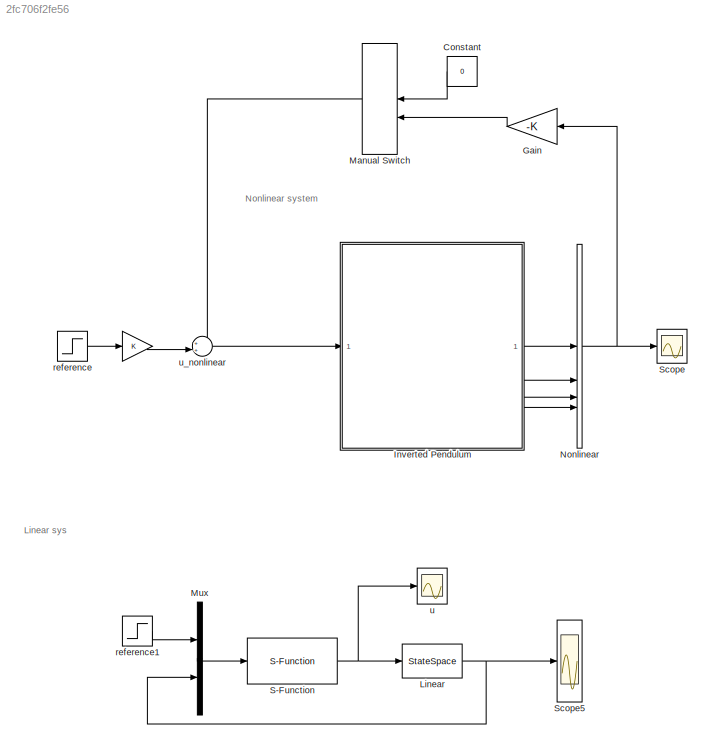
MODEL slx_2fc706f2fe56
KIND model
CONFIG AbsTol = auto
CONFIG EnableMultiTasking = off
CONFIG FixedStep = auto
CONFIG MaxStep = 1e-4
CONFIG MinStep = auto
CONFIG RelTol = 1e-3
CONFIG SampleTimeConstraint = Unconstrained
CONFIG SolverName = VariableStepAuto
CONFIG StartTime = 0.0
CONFIG StopTime = 10
BLOCK [Gain]  
  Commented = on
BLOCK [Constant] Constant
  Commented = on
  NameLocation = top
  Value = 0
BLOCK [Gain] Gain
  Commented = on
  Gain = -K
  Multiplication = Matrix(K*u) (u vector)
  NameLocation = top
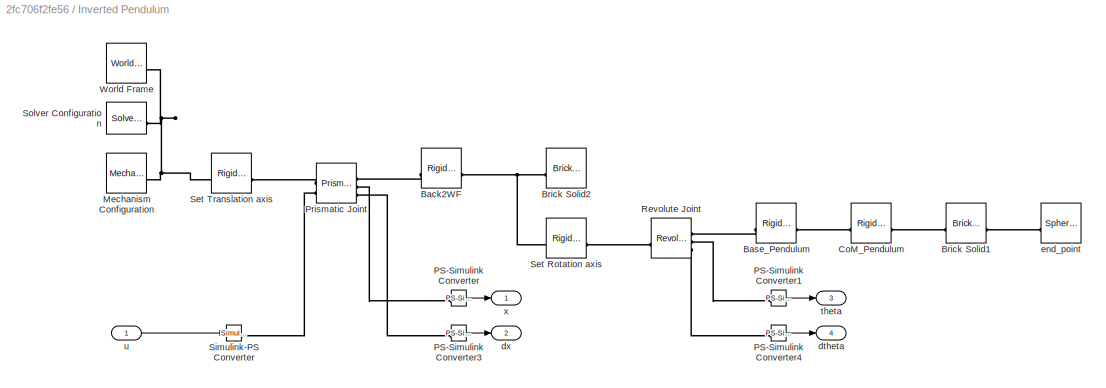
BLOCK [SubSystem] Inverted Pendulum
  Commented = on
BLOCK [Reference] Inverted Pendulum/Back2WF  REF=sm_lib/Frames and
Transforms/Rigid
Transform
  SourceBlock = sm_lib/Frames and\nTransforms/Rigid\nTransform
  SourceType = Rigid\nTransform
BLOCK [Reference] Inverted Pendulum/Base_Pendulum  REF=sm_lib/Frames and
Transforms/Rigid
Transform
  SourceBlock = sm_lib/Frames and\nTransforms/Rigid\nTransform
  SourceType = Rigid\nTransform
BLOCK [Reference] Inverted Pendulum/Brick Solid1  REF=sm_lib/Body Elements/Brick Solid
  SourceBlock = sm_lib/Body Elements/Brick Solid
  SourceType = Brick Solid
BLOCK [Reference] Inverted Pendulum/Brick Solid2  REF=sm_lib/Body Elements/Brick Solid
  NameLocation = top
  SourceBlock = sm_lib/Body Elements/Brick Solid
  SourceType = Brick Solid
BLOCK [Reference] Inverted Pendulum/CoM_Pendulum  REF=sm_lib/Frames and
Transforms/Rigid
Transform
  SourceBlock = sm_lib/Frames and\nTransforms/Rigid\nTransform
  SourceType = Rigid\nTransform
BLOCK [Reference] Inverted Pendulum/Mechanism Configuration  REF=sm_lib/Utilities/Mechanism
Configuration
  SourceBlock = sm_lib/Utilities/Mechanism\nConfiguration
  SourceType = Mechanism\nConfiguration
BLOCK [Reference] Inverted Pendulum/PS-Simulink Converter  REF=nesl_utility/PS-Simulink
Converter
  NameLocation = top
  SourceBlock = nesl_utility/PS-Simulink\nConverter
  SourceType = PS-Simulink\nConverter
BLOCK [Reference] Inverted Pendulum/PS-Simulink Converter1  REF=nesl_utility/PS-Simulink
Converter
  NameLocation = top
  SourceBlock = nesl_utility/PS-Simulink\nConverter
  SourceType = PS-Simulink\nConverter
BLOCK [Reference] Inverted Pendulum/PS-Simulink Converter3  REF=nesl_utility/PS-Simulink
Converter
  NameLocation = top
  SourceBlock = nesl_utility/PS-Simulink\nConverter
  SourceType = PS-Simulink\nConverter
BLOCK [Reference] Inverted Pendulum/PS-Simulink Converter4  REF=nesl_utility/PS-Simulink
Converter
  NameLocation = top
  SourceBlock = nesl_utility/PS-Simulink\nConverter
  SourceType = PS-Simulink\nConverter
BLOCK [Reference] Inverted Pendulum/Prismatic Joint  REF=sm_lib/Joints/Prismatic
Joint
  SourceBlock = sm_lib/Joints/Prismatic\nJoint
  SourceType = Prismatic\nJoint
BLOCK [Reference] Inverted Pendulum/Revolute Joint  REF=sm_lib/Joints/Revolute Joint
  SourceBlock = sm_lib/Joints/Revolute Joint
  SourceType = Revolute Joint
BLOCK [Reference] Inverted Pendulum/Set Rotation axis  REF=sm_lib/Frames and
Transforms/Rigid
Transform
  SourceBlock = sm_lib/Frames and\nTransforms/Rigid\nTransform
  SourceType = Rigid\nTransform
BLOCK [Reference] Inverted Pendulum/Set Translation axis  REF=sm_lib/Frames and
Transforms/Rigid
Transform
  SourceBlock = sm_lib/Frames and\nTransforms/Rigid\nTransform
  SourceType = Rigid\nTransform
BLOCK [Reference] Inverted Pendulum/Simulink-PS Converter  REF=nesl_utility/Simulink-PS
Converter
  SourceBlock = nesl_utility/Simulink-PS\nConverter
  SourceType = Simulink-PS\nConverter
BLOCK [Reference] Inverted Pendulum/Solver Configuration  REF=nesl_utility/Solver
Configuration
  SourceBlock = nesl_utility/Solver\nConfiguration
  SourceType = Solver\nConfiguration
BLOCK [Reference] Inverted Pendulum/World Frame  REF=sm_lib/Frames and
Transforms/World Frame
  SourceBlock = sm_lib/Frames and\nTransforms/World Frame
  SourceType = World Frame
BLOCK [Outport] Inverted Pendulum/dtheta
  NameLocation = top
  Port = 4
BLOCK [Outport] Inverted Pendulum/dx
  NameLocation = top
  Port = 2
BLOCK [Reference] Inverted Pendulum/end_point  REF=sm_lib/Body Elements/Spherical Solid
  SourceBlock = sm_lib/Body Elements/Spherical Solid
  SourceType = Spherical Solid
BLOCK [Outport] Inverted Pendulum/theta
  NameLocation = top
  Port = 3
BLOCK [Inport] Inverted Pendulum/u
BLOCK [Outport] Inverted Pendulum/x
  NameLocation = top
BLOCK [StateSpace] Linear
  A = A
  B = B
  C = eye(4)
  D = zeros(4,1)
  InitialCondition = [0; 0; theta_init; 0]
BLOCK [ManualSwitch] Manual Switch
  Commented = on
  CurrentSetting = 0
  NameLocation = top
BLOCK [Mux] Mux
  DisplayOption = bar
  Inputs = 2
BLOCK [Concatenate] Nonlinear
  Commented = on
  NumInputs = 4
BLOCK [S-Function] S-Function
  EnableBusSupport = off
  FunctionName = HSMC_test_ctrl
  Parameters = A,B,pa
  SFcnIsStateOwnerBlock = off
  SFunctionDeploymentMode = off
BLOCK [Scope] Scope
  Commented = on
  Floating = off
  NumInputPorts = 1
  ScopeSpecificationString = Simulink.scopes.TimeScopeBlockCfg('CurrentConfiguration', extmgr.ConfigurationSet(extmgr.Configuration('Core','General UI',true,'FigureColor',[1 1 1]),extmgr.Configuration('Core','Source UI',true),extmgr.Configuration('Sources','WiredSimulink',true,'DataLogging',true,'DataLoggingVariableName','x','DataLoggingSaveFormat','Array'),extmgr.Configuration('Visuals','Time Domain',true,'SerializedDisplays...<+2346ch>
BLOCK [Scope] Scope5
  Floating = off
  NumInputPorts = 1
  ScopeSpecificationString = Simulink.scopes.TimeScopeBlockCfg('CurrentConfiguration', extmgr.ConfigurationSet(extmgr.Configuration('Core','General UI',true,'FigureColor',[1 1 1]),extmgr.Configuration('Core','Source UI',true),extmgr.Configuration('Sources','WiredSimulink',true,'DataLogging',true,'DataLoggingVariableName','ScopeData6','DataLoggingSaveFormat','Array'),extmgr.Configuration('Visuals','Time Domain',true,'Serialize...<+2339ch>
BLOCK [Step] reference
  After = pos
  Commented = on
  SampleTime = 0
  Time = step_time
BLOCK [Step] reference1
  After = pos
  SampleTime = 0
  Time = step_time
BLOCK [Scope] u
  Floating = off
  NumInputPorts = 1
  ScopeSpecificationString = Simulink.scopes.TimeScopeBlockCfg('CurrentConfiguration', extmgr.ConfigurationSet(extmgr.Configuration('Core','General UI',true,'FigureColor',[1 1 1]),extmgr.Configuration('Core','Source UI',true),extmgr.Configuration('Sources','WiredSimulink',true,'DataLogging',true,'DataLoggingVariableName','ScopeData10','DataLoggingSaveFormat','Array'),extmgr.Configuration('Visuals','Time Domain',true,'Serializ...<+2286ch>
BLOCK [Sum] u_nonlinear
  Commented = on
  Inputs = ++|
ANNOTATION (root): Linear sys
ANNOTATION (root): Nonlinear system
LINE  :1 -> u_nonlinear:2
LINE Constant:1 -> Manual Switch:1
LINE Gain:1 -> Manual Switch:2
LINE Inverted Pendulum/PS-Simulink Converter1:1 -> Inverted Pendulum/theta:1
LINE Inverted Pendulum/PS-Simulink Converter3:1 -> Inverted Pendulum/dx:1
LINE Inverted Pendulum/PS-Simulink Converter4:1 -> Inverted Pendulum/dtheta:1
LINE Inverted Pendulum/PS-Simulink Converter:1 -> Inverted Pendulum/x:1
LINE Inverted Pendulum/u:1 -> Inverted Pendulum/Simulink-PS Converter:1
LINE Inverted Pendulum:1 -> Nonlinear:1
LINE Inverted Pendulum:2 -> Nonlinear:2
LINE Inverted Pendulum:3 -> Nonlinear:3
LINE Inverted Pendulum:4 -> Nonlinear:4
NET Linear:1 -> Mux:2, Scope5:1
LINE Manual Switch:1 -> u_nonlinear:1
LINE Mux:1 -> S-Function:1
NET Nonlinear:1 -> Gain:1, Scope:1
NET S-Function:1 -> Linear:1, u:1
LINE reference1:1 -> Mux:1
LINE reference:1 ->  :1
LINE u_nonlinear:1 -> Inverted Pendulum:1
PLINE Inverted Pendulum/Back2WF:LConn1 -- Inverted Pendulum/Prismatic Joint:RConn1
PNET net1: Inverted Pendulum/Back2WF:RConn1 -- Inverted Pendulum/Brick Solid2:RConn1 -- Inverted Pendulum/Set Rotation axis:LConn1
PLINE Inverted Pendulum/Base_Pendulum:LConn1 -- Inverted Pendulum/Revolute Joint:RConn1
PLINE Inverted Pendulum/Base_Pendulum:RConn1 -- Inverted Pendulum/CoM_Pendulum:LConn1
PLINE Inverted Pendulum/Brick Solid1:LConn1 -- Inverted Pendulum/end_point:RConn1
PLINE Inverted Pendulum/Brick Solid1:RConn1 -- Inverted Pendulum/CoM_Pendulum:RConn1
PNET net2: Inverted Pendulum/Mechanism Configuration:RConn1 -- Inverted Pendulum/Set Translation axis:LConn1 -- Inverted Pendulum/Solver Configuration:RConn1 -- Inverted Pendulum/World Frame:RConn1
PLINE Inverted Pendulum/PS-Simulink Converter1:LConn1 -- Inverted Pendulum/Revolute Joint:RConn2
PLINE Inverted Pendulum/PS-Simulink Converter3:LConn1 -- Inverted Pendulum/Prismatic Joint:RConn3
PLINE Inverted Pendulum/PS-Simulink Converter4:LConn1 -- Inverted Pendulum/Revolute Joint:RConn3
PLINE Inverted Pendulum/PS-Simulink Converter:LConn1 -- Inverted Pendulum/Prismatic Joint:RConn2
PLINE Inverted Pendulum/Prismatic Joint:LConn1 -- Inverted Pendulum/Set Translation axis:RConn1
PLINE Inverted Pendulum/Prismatic Joint:LConn2 -- Inverted Pendulum/Simulink-PS Converter:RConn1
PLINE Inverted Pendulum/Revolute Joint:LConn1 -- Inverted Pendulum/Set Rotation axis:RConn1
note: NET lines group one-source signal fan-out (src -> all destinations, sorted); 1:1 wires keep LINE; PNET lines group multi-terminal physical nets as a canonical sorted terminal list (undirected conserving connections); 2-terminal nets keep the pairwise PLINE form
